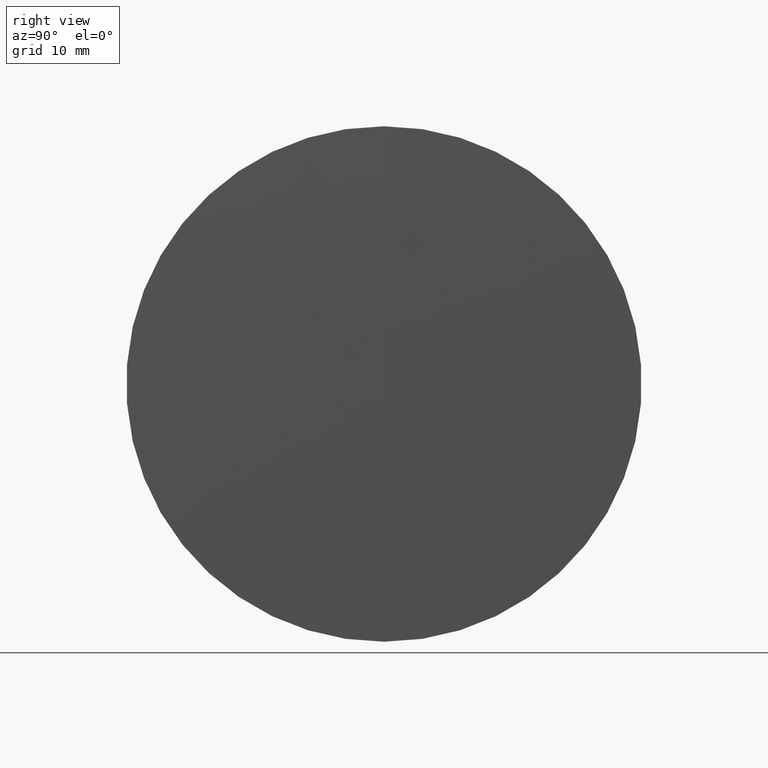
[diagram: clean part render]
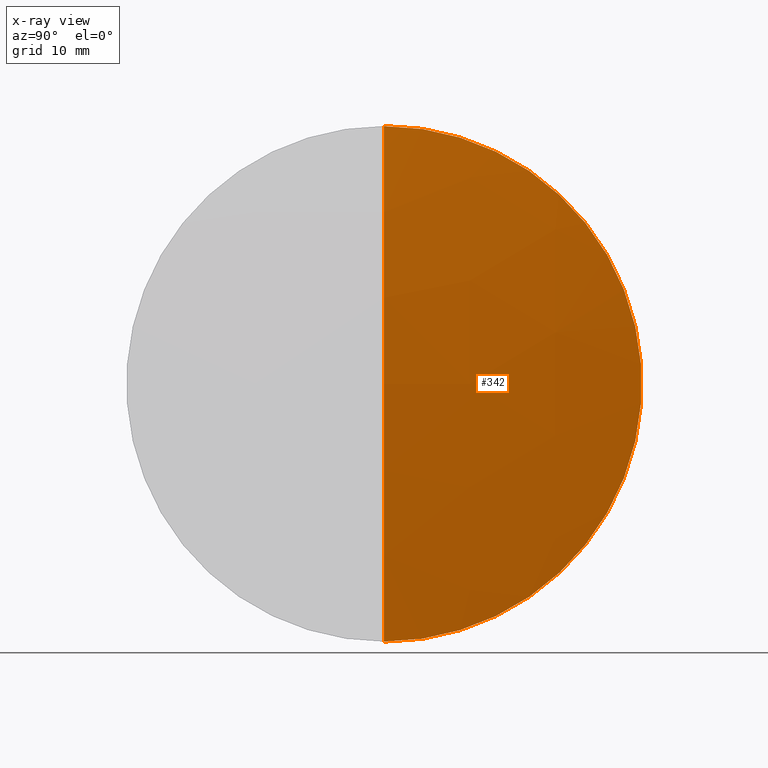
[diagram: x-ray — body ghosted, one internal face saturated and labeled with its STEP entity id]
A machine part, right view, then the same camera in x-ray: the body is ghosted and one INTERNAL B-rep face — a face not visible from any outside direction — is saturated and labeled: STEP entity #342.
In plain terms, the highlighted spherical surface has radius 243.3 mm.
Its self-contained STEP definition (entity closure, byte-faithful):
#5 = DIRECTION ( 'NONE',  ( 0.0000000000000000000, 0.0000000000000000000, -1.000000000000000000 ) ) ;
#7 = AXIS2_PLACEMENT_3D ( 'NONE', #74, #69, #272 ) ;
#30 = CIRCLE ( 'NONE', #325, 25.40000000000000200 ) ;
#46 = EDGE_LOOP ( 'NONE', ( #133, #151, #247 ) ) ;
#62 = DIRECTION ( 'NONE',  ( 0.0000000000000000000, -1.224646799147353000E-016, 1.000000000000000000 ) ) ;
#66 = CARTESIAN_POINT ( 'NONE',  ( 499.5922971757753400, 0.0000000000000000000, 0.0000000000000000000 ) ) ;
#69 = DIRECTION ( 'NONE',  ( 0.0000000000000000000, 1.000000000000000000, 0.0000000000000000000 ) ) ;
#71 = VERTEX_POINT ( 'NONE', #221 ) ;
#74 = CARTESIAN_POINT ( 'NONE',  ( 257.6217824430913800, 0.0000000000000000000, 2.168404344971008900E-016 ) ) ;
#106 = FACE_OUTER_BOUND ( 'NONE', #46, .T. ) ;
#133 = ORIENTED_EDGE ( 'NONE', *, *, #306, .F. ) ;
#135 = EDGE_CURVE ( 'NONE', #146, #211, #168, .T. ) ;
#146 = VERTEX_POINT ( 'NONE', #201 ) ;
#151 = ORIENTED_EDGE ( 'NONE', *, *, #135, .T. ) ;
#152 = DIRECTION ( 'NONE',  ( 0.0000000000000000000, 0.0000000000000000000, 1.000000000000000000 ) ) ;
#166 = AXIS2_PLACEMENT_3D ( 'NONE', #255, #288, #62 ) ;
#168 = CIRCLE ( 'NONE', #166, 243.3000000000000400 ) ;
#172 = SPHERICAL_SURFACE ( 'NONE', #7, 243.3000000000000400 ) ;
#190 = CIRCLE ( 'NONE', #309, 243.3000000000000400 ) ;
#201 = CARTESIAN_POINT ( 'NONE',  ( 500.9217824430913900, 0.0000000000000000000, 1.511466874612465300E-014 ) ) ;
#211 = VERTEX_POINT ( 'NONE', #282 ) ;
#221 = CARTESIAN_POINT ( 'NONE',  ( 499.5922971757753400, 0.0000000000000000000, 25.40000000000000200 ) ) ;
#247 = ORIENTED_EDGE ( 'NONE', *, *, #265, .F. ) ;
#255 = CARTESIAN_POINT ( 'NONE',  ( 257.6217824430913800, 0.0000000000000000000, 2.168404344971008900E-016 ) ) ;
#263 = DIRECTION ( 'NONE',  ( -1.000000000000000000, -0.0000000000000000000, -0.0000000000000000000 ) ) ;
#265 = EDGE_CURVE ( 'NONE', #71, #211, #30, .T. ) ;
#272 = DIRECTION ( 'NONE',  ( 0.0000000000000000000, 0.0000000000000000000, 1.000000000000000000 ) ) ;
#275 = CARTESIAN_POINT ( 'NONE',  ( 257.6217824430913800, 0.0000000000000000000, 2.168404344971008900E-016 ) ) ;
#276 = DIRECTION ( 'NONE',  ( 0.0000000000000000000, -1.000000000000000000, 0.0000000000000000000 ) ) ;
#282 = CARTESIAN_POINT ( 'NONE',  ( 499.5922971757753400, 3.110602869834277300E-015, -25.40000000000000200 ) ) ;
#288 = DIRECTION ( 'NONE',  ( -0.0000000000000000000, 1.000000000000000000, 1.224646799147353200E-016 ) ) ;
#306 = EDGE_CURVE ( 'NONE', #146, #71, #190, .T. ) ;
#309 = AXIS2_PLACEMENT_3D ( 'NONE', #275, #276, #5 ) ;
#325 = AXIS2_PLACEMENT_3D ( 'NONE', #66, #263, #152 ) ;
#342 = ADVANCED_FACE ( 'NONE', ( #106 ), #172, .T. ) ;